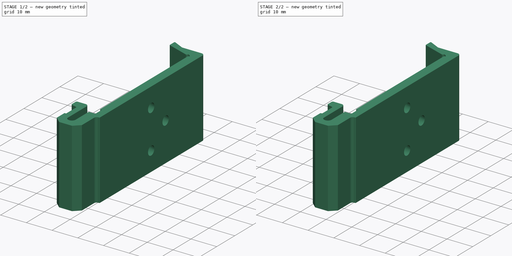
[diagram: build sequence overview — one tinted view per stage of 2, left to right]
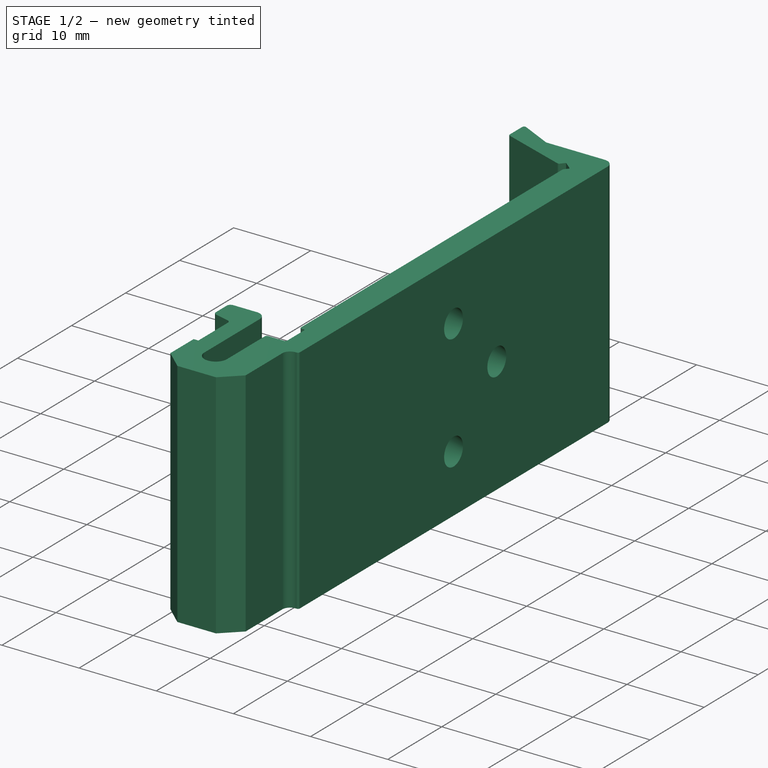
[diagram: stage 1 of 2 — iso view after this stage's code; geometry added in this stage tinted green]
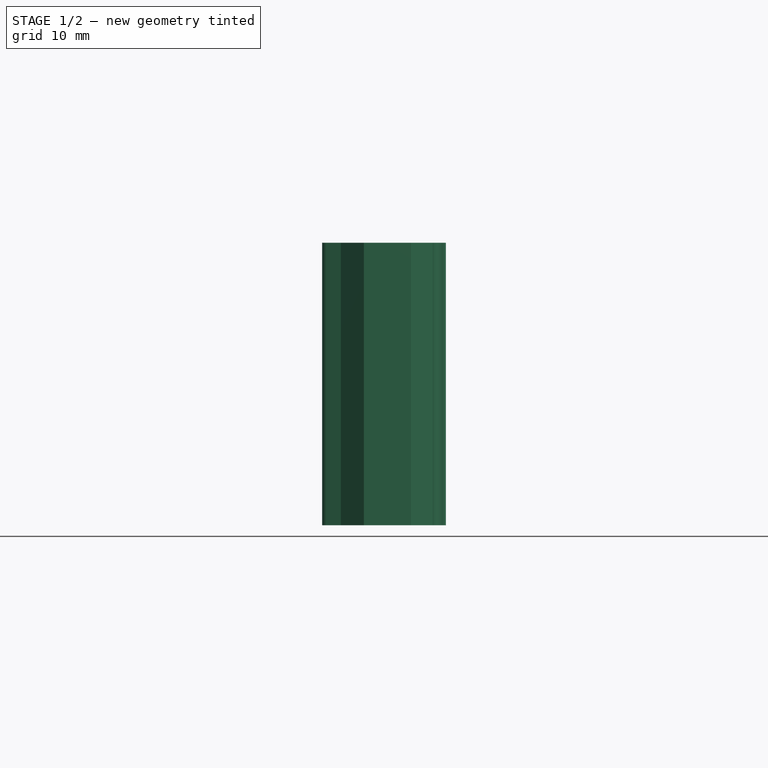
[diagram: stage 1 of 2 — front view after this stage's code; geometry added in this stage tinted green]
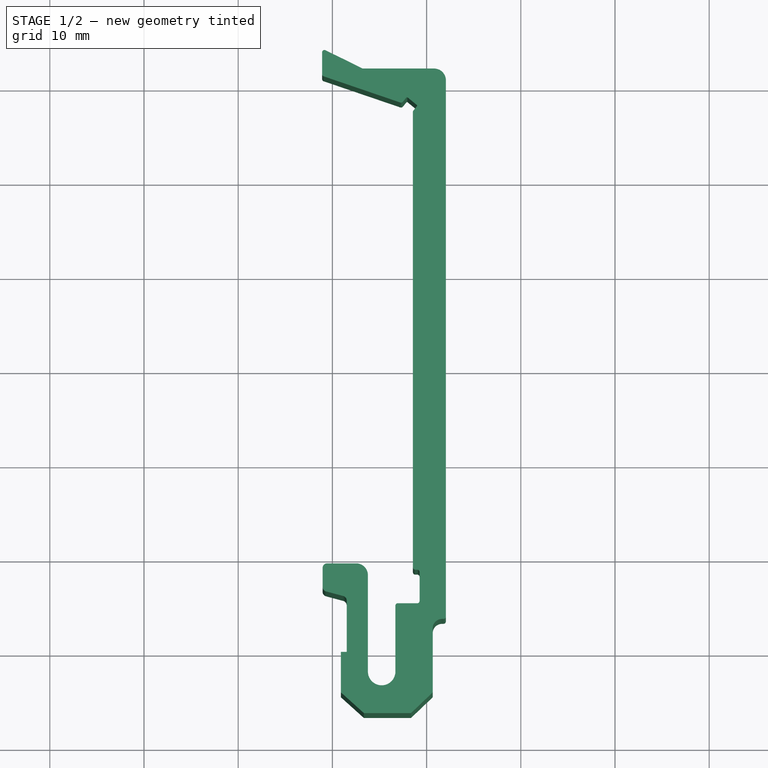
[diagram: stage 1 of 2 — top view after this stage's code; geometry added in this stage tinted green]
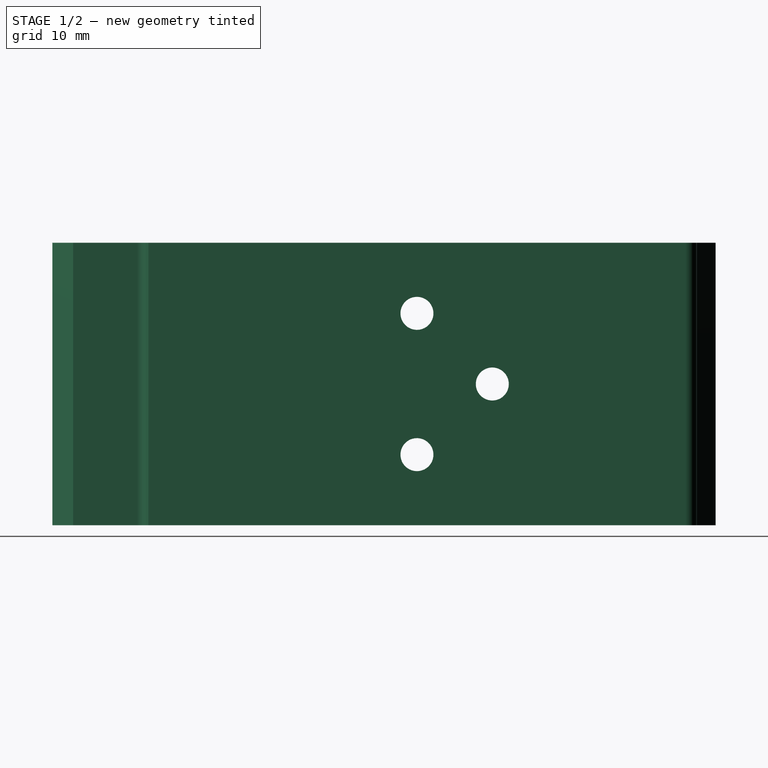
[diagram: stage 1 of 2 — right view after this stage's code; geometry added in this stage tinted green]
FCSTD DOCUMENT  (FreeCAD 1.0R39319 (Git))
Label: DIN35 Mounting
License: All rights reserved
LicenseURL: https://en.wikipedia.org/wiki/All_rights_reserved
objects: Sketcher::SketchObject×3, Image::ImagePlane×1, PartDesign::Pad×1, PartDesign::SubtractiveLoft×1, PartDesign::Fillet×1, PartDesign::Body×1
note: 16 computed .brp shape members not serialized (recipe doc carries the construction recipe); baked Part::Feature solids carry a one-line shape summary decoded from their .brp

FEATURE [Image::ImagePlane] DIN35_Mount
  XSize = 167.46
  YSize = 108.995
FEATURE [Sketcher::SketchObject] Sketch
  ArcFitTolerance = 1e-06
  AttachmentSupport = -> [XY_Plane]
  FullyConstrained = false
  MakeInternals = false
  MapMode = 5
  sketch-geometry (61):
    g0: LineSegment StartX=-60.7319 StartY=23.7923 StartZ=0 EndX=-56.7808 EndY=21.8492 EndZ=0
    g1: LineSegment StartX=-56.7808 StartY=21.8492 StartZ=0 EndX=-49.2013 EndY=21.8492 EndZ=0
    g2: LineSegment StartX=-47.9513 StartY=20.5992 StartZ=0 EndX=-47.9513 EndY=-36.337 EndZ=0
    g3: LineSegment StartX=-48.2013 StartY=-36.587 StartZ=0 EndX=-48.3485 EndY=-36.587 EndZ=0
    g4: LineSegment StartX=-49.3485 StartY=-37.587 StartZ=0 EndX=-49.3485 EndY=-44.387 EndZ=0
    g5: LineSegment StartX=-49.3485 StartY=-44.387 StartZ=0 EndX=-51.6552 EndY=-46.587 EndZ=0
    g6: LineSegment StartX=-51.6552 StartY=-46.587 StartZ=0 EndX=-56.6552 EndY=-46.587 EndZ=0
    g7: LineSegment StartX=-56.6552 StartY=-46.587 StartZ=0 EndX=-59.0985 EndY=-44.387 EndZ=0
    g8: LineSegment StartX=-59.0985 StartY=-44.387 StartZ=0 EndX=-59.0985 EndY=-40.087 EndZ=0
    g9: LineSegment StartX=-58.4811 StartY=-40.087 StartZ=0 EndX=-58.4811 EndY=-34.6402 EndZ=0
    g10: LineSegment StartX=-58.8517 StartY=-34.1572 StartZ=0 EndX=-60.6719 EndY=-33.6695 EndZ=0
    g11: LineSegment StartX=-61.0425 StartY=-33.1865 StartZ=0 EndX=-61.0425 EndY=-31.1865 EndZ=0
    g12: LineSegment StartX=-60.5425 StartY=-30.6865 StartZ=0 EndX=-57.4811 EndY=-30.6865 EndZ=0
    g13: LineSegment StartX=-56.2311 StartY=-31.9365 StartZ=0 EndX=-56.2311 EndY=-42.1793 EndZ=0
    g14: ArcOfCircle CenterX=-54.7711 CenterY=-42.1793 CenterZ=0 NormalX=0 NormalY=0 NormalZ=1 AngleXU=0 Radius=1.46 StartAngle=3.14159 EndAngle=6.28319
    g15: LineSegment StartX=-53.3111 StartY=-42.1793 StartZ=0 EndX=-53.3111 EndY=-35.1739 EndZ=0
    g16: LineSegment StartX=-53.0611 StartY=-34.9239 StartZ=0 EndX=-50.9949 EndY=-34.9239 EndZ=0
    g17: LineSegment StartX=-50.7449 StartY=-34.6739 StartZ=0 EndX=-50.7449 EndY=-31.6139 EndZ=0
    g18: LineSegment StartX=-50.9949 StartY=-31.3639 StartZ=0 EndX=-51.2013 EndY=-31.3639 EndZ=0
    g19: LineSegment StartX=-51.4513 StartY=-31.1139 StartZ=0 EndX=-51.4513 EndY=17.2408 EndZ=0
    g20: LineSegment StartX=-51.3946 StartY=17.3994 StartZ=0 EndX=-51.0289 EndY=17.8452 EndZ=0
    g21: LineSegment StartX=-51.0428 StartY=17.9859 StartZ=0 EndX=-52.0093 EndY=18.7787 EndZ=0
    g22: LineSegment StartX=-52.15 StartY=18.7648 StartZ=0 EndX=-52.5157 EndY=18.319 EndZ=0
    g23: LineSegment StartX=-52.7898 StartY=18.241 StartZ=0 EndX=-60.923 EndY=21.0188 EndZ=0
    g24: LineSegment StartX=-61.0922 StartY=21.2554 StartZ=0 EndX=-61.0922 EndY=23.5679 EndZ=0
    g25: GeomPoint [constr] X=-58.4811 Y=-40.1664 Z=0
    g26: LineSegment StartX=-59.0985 StartY=-40.087 StartZ=0 EndX=-58.4811 EndY=-40.087 EndZ=0
    g27: ArcOfCircle CenterX=-49.2013 CenterY=20.5992 CenterZ=0 NormalX=0 NormalY=0 NormalZ=1 AngleXU=0 Radius=1.25 StartAngle=0 EndAngle=1.5708
    g28: GeomPoint [constr] X=-47.9513 Y=21.8492 Z=0
    g29: ArcOfCircle CenterX=-60.8422 CenterY=23.5679 CenterZ=0 NormalX=0 NormalY=0 NormalZ=1 AngleXU=0 Radius=0.25 StartAngle=1.11376 EndAngle=3.14159
    g30: GeomPoint [constr] X=-61.0922 Y=23.9695 Z=0
    g31: ArcOfCircle CenterX=-60.8422 CenterY=21.2554 CenterZ=0 NormalX=0 NormalY=0 NormalZ=1 AngleXU=0 Radius=0.25 StartAngle=3.14159 EndAngle=4.38327
    g32: GeomPoint [constr] X=-61.0922 Y=21.0766 Z=0
    g33: ArcOfCircle CenterX=-52.0727 CenterY=18.7014 CenterZ=0 NormalX=0 NormalY=0 NormalZ=1 AngleXU=0 Radius=0.1 StartAngle=0.88379 EndAngle=2.45459
    g34: GeomPoint [constr] X=-52.0866 Y=18.8421 Z=0
    g35: ArcOfCircle CenterX=-51.1063 CenterY=17.9086 CenterZ=0 NormalX=0 NormalY=0 NormalZ=1 AngleXU=0 Radius=0.1 StartAngle=5.59618 EndAngle=7.16698
    g36: GeomPoint [constr] X=-50.9655 Y=17.9225 Z=0
    g37: ArcOfCircle CenterX=-51.2013 CenterY=-31.1139 CenterZ=0 NormalX=0 NormalY=0 NormalZ=1 AngleXU=0 Radius=0.25 StartAngle=3.14159 EndAngle=4.71239
    g38: GeomPoint [constr] X=-51.4513 Y=-31.3639 Z=0
    g39: ArcOfCircle CenterX=-50.9949 CenterY=-31.6139 CenterZ=0 NormalX=0 NormalY=0 NormalZ=1 AngleXU=0 Radius=0.25 StartAngle=-3.6e-15 EndAngle=1.5708
    g40: GeomPoint [constr] X=-50.7449 Y=-31.3639 Z=0
    g41: ArcOfCircle CenterX=-53.0611 CenterY=-35.1739 CenterZ=0 NormalX=0 NormalY=0 NormalZ=1 AngleXU=0 Radius=0.25 StartAngle=1.5708 EndAngle=3.14159
    g42: GeomPoint [constr] X=-53.3111 Y=-34.9239 Z=0
    g43: ArcOfCircle CenterX=-50.9949 CenterY=-34.6739 CenterZ=0 NormalX=0 NormalY=0 NormalZ=1 AngleXU=0 Radius=0.25 StartAngle=4.71239 EndAngle=6.28319
    g44: GeomPoint [constr] X=-50.7449 Y=-34.9239 Z=0
    g45: ArcOfCircle CenterX=-48.3485 CenterY=-37.587 CenterZ=0 NormalX=0 NormalY=0 NormalZ=1 AngleXU=0 Radius=1 StartAngle=1.5708 EndAngle=3.14159
    g46: GeomPoint [constr] X=-49.3485 Y=-36.587 Z=0
    g47: ArcOfCircle CenterX=-48.2013 CenterY=-36.337 CenterZ=0 NormalX=0 NormalY=0 NormalZ=1 AngleXU=0 Radius=0.25 StartAngle=4.71239 EndAngle=6.28319
    g48: GeomPoint [constr] X=-47.9513 Y=-36.587 Z=0
    g49: ArcOfCircle CenterX=-52.709 CenterY=18.4776 CenterZ=0 NormalX=0 NormalY=0 NormalZ=1 AngleXU=0 Radius=0.25 StartAngle=4.38327 EndAngle=5.59618
    g50: GeomPoint [constr] X=-52.6257 Y=18.1849 Z=0
    g51: ArcOfCircle CenterX=-51.2013 CenterY=17.2408 CenterZ=0 NormalX=0 NormalY=0 NormalZ=1 AngleXU=0 Radius=0.25 StartAngle=2.45459 EndAngle=3.14159
    g52: GeomPoint [constr] X=-51.4513 Y=17.3302 Z=0
    g53: ArcOfCircle CenterX=-57.4811 CenterY=-31.9365 CenterZ=0 NormalX=0 NormalY=0 NormalZ=1 AngleXU=0 Radius=1.25 StartAngle=0 EndAngle=1.5708
    g54: GeomPoint [constr] X=-56.2311 Y=-30.6865 Z=0
    g55: ArcOfCircle CenterX=-60.5425 CenterY=-31.1865 CenterZ=0 NormalX=0 NormalY=0 NormalZ=1 AngleXU=0 Radius=0.5 StartAngle=1.5708 EndAngle=3.14159
    g56: GeomPoint [constr] X=-61.0425 Y=-30.6865 Z=0
    g57: ArcOfCircle CenterX=-60.5425 CenterY=-33.1865 CenterZ=0 NormalX=0 NormalY=0 NormalZ=1 AngleXU=0 Radius=0.5 StartAngle=3.14159 EndAngle=4.45059
    g58: GeomPoint [constr] X=-61.0425 Y=-33.5702 Z=0
    g59: ArcOfCircle CenterX=-58.9811 CenterY=-34.6402 CenterZ=0 NormalX=0 NormalY=0 NormalZ=1 AngleXU=0 Radius=0.5 StartAngle=5.9e-15 EndAngle=1.309
    g60: GeomPoint [constr] X=-58.4811 Y=-34.2565 Z=0
  constraints (131):
    c: Coincident(g0,g1)
    c: Horizontal(g1)
    c: Vertical(g2)
    c: Vertical(g4)
    c: Coincident(g4,g5)
    c: Coincident(g5,g6)
    c: Horizontal(g6)
    c: Coincident(g6,g7)
    c: Coincident(g7,g8)
    c: Vertical(g9)
    c: Vertical(g11)
    c: Horizontal(g12)
    c: Vertical(g13)
    c: Tangent(g13,g14) = -1.5708
    c: Coincident(g14,g15)
    c: Vertical(g15)
    c: Horizontal(g16)
    c: Vertical(g19)
    c: Vertical(g24)
    c: Vertical(g8)
    c: PointOnObject(g25,g9)
    c: Coincident(g8,g26)
    c: Horizontal(g26)
    c: Coincident(g26,g9)
    c: Horizontal(g3)
    c: Horizontal(g18)
    c: Vertical(g17)
    c: Parallel(g20,g22)
    c: Perpendicular(g21,g20)
    c: PointOnObject(g28,g2)
    c: PointOnObject(g28,g1)
    c: Tangent(g2,g27) = 1.5708
    c: Tangent(g1,g27) = 1.5708
    c: PointOnObject(g30,g0)
    c: PointOnObject(g30,g24)
    c: Tangent(g0,g29) = 1.5708
    c: Tangent(g24,g29) = 1.5708
    c: PointOnObject(g32,g24)
    c: PointOnObject(g32,g23)
    c: Tangent(g24,g31) = 1.5708
    c: Tangent(g23,g31) = 1.5708
    c: Equal(g29,g31)
    c: PointOnObject(g34,g21)
    c: PointOnObject(g34,g22)
    c: Tangent(g21,g33) = -1.5708
    c: Tangent(g22,g33) = -1.5708
    c: PointOnObject(g36,g21)
    c: PointOnObject(g36,g20)
    c: Tangent(g21,g35) = -1.5708
    c: Tangent(g20,g35) = -1.5708
    c: Equal(g33,g35)
    c: Radius(g33) = 0.1
    c: Radius(g29) = 0.25
    c: Radius(g27) = 1.25
    c: PointOnObject(g38,g18)
    c: PointOnObject(g38,g19)
    c: Tangent(g18,g37) = 1.5708
    c: Tangent(g19,g37) = 1.5708
    c: PointOnObject(g40,g17)
    c: PointOnObject(g40,g18)
    c: Tangent(g17,g39) = -1.5708
    c: Tangent(g18,g39) = -1.5708
    c: PointOnObject(g42,g16)
    c: PointOnObject(g42,g15)
    c: Tangent(g16,g41) = 1.5708
    c: Tangent(g15,g41) = 1.5708
    c: PointOnObject(g44,g17)
    c: PointOnObject(g44,g16)
    c: Tangent(g17,g43) = -1.5708
    c: Tangent(g16,g43) = -1.5708
    c: Equal(g37,g39)
    c: Equal(g43,g41)
    c: Equal(g43,g39)
    c: Radius(g37) = 0.25
    c: PointOnObject(g46,g3)
    c: PointOnObject(g46,g4)
    c: Tangent(g3,g45) = -1.5708
    c: Tangent(g4,g45) = -1.5708
    c: Radius(g45) = 1
    c: PointOnObject(g48,g3)
    c: PointOnObject(g48,g2)
    c: Tangent(g3,g47) = 1.5708
    c: Tangent(g2,g47) = 1.5708
    c: Radius(g47) = 0.25
    c: Distance(g2,g19) = 3.5
    c: Distance(g22,g50) = 0.75
    c: PointOnObject(g50,g22)
    c: PointOnObject(g50,g23)
    c: Tangent(g22,g49) = 1.5708
    c: Tangent(g23,g49) = 1.5708
    c: PointOnObject(g52,g20)
    c: PointOnObject(g52,g19)
    c: Tangent(g20,g51) = 1.5708
    c: Tangent(g19,g51) = 1.5708
    c: Equal(g51,g49)
    c: Radius(g49) = 0.25
    c: Distance(g21,g21) = 1.25
    c: Equal(g22,g20)
    c: PointOnObject(g54,g13)
    c: PointOnObject(g54,g12)
    c: Tangent(g13,g53) = 1.5708
    c: Tangent(g12,g53) = 1.5708
    c: Radius(g53) = 1.25
    c: PointOnObject(g56,g12)
    c: PointOnObject(g56,g11)
    c: Tangent(g12,g55) = 1.5708
    c: Tangent(g11,g55) = 1.5708
    c: Radius(g55) = 0.5
    c: PointOnObject(g58,g10)
    c: PointOnObject(g58,g11)
    c: Tangent(g10,g57) = 1.5708
    c: Tangent(g11,g57) = 1.5708
    c: Angle(g10,g11) = 1.8326
    c: Radius(g57) = 0.5
    c: PointOnObject(g60,g10)
    c: PointOnObject(g60,g9)
    c: Tangent(g10,g59) = -1.5708
    c: Tangent(g9,g59) = -1.5708
    c: Radius(g59) = 0.5
    c: Distance(g13,g9) = 2.25
    c: Radius(g14) = 1.46
    c: DistanceY(g7,g7) = 2.2
    c: Distance(g4,g8) = 9.75
    c: Distance(g60,g12) = 3.57
    c: DistanceY(g11,g11) = 2
    c: Angle(g6,g7) = 2.40855
    c: Horizontal(g7,g4)
    c: Distance(g15,g13) = 2.92
    c: DistanceX(g6,g6) = 5
    c: Distance(g46,g6) = 10
    c: Distance(g6,g26) = 6.5
FEATURE [PartDesign::Pad] Pad
  Direction = (0,0,1)
  Length = 30
  Length2 = 10
  Profile = -> Sketch
  ReferenceAxis = -> Sketch [N_Axis]
  Refine = true
  Suppressed = false
  Type = 0
FEATURE [Sketcher::SketchObject] Sketch001
  ArcFitTolerance = 1e-06
  AttachmentSupport = -> [Pad]
  ExternalGeometry = -> [Pad]
  FullyConstrained = true
  MakeInternals = false
  MapMode = 5
  Placement = pos=(-51.4513,0,0) rot=(0.57735,-0.57735,-0.57735;2.0944rad)
  sketch-geometry (3):
    g0: Circle CenterX=8.11392 CenterY=7.5 CenterZ=0 NormalX=0 NormalY=0 NormalZ=1 AngleXU=0 Radius=3
    g1: Circle CenterX=8.11392 CenterY=22.5 CenterZ=0 NormalX=0 NormalY=0 NormalZ=1 AngleXU=0 Radius=3
    g2: Circle CenterX=0.113916 CenterY=15 CenterZ=0 NormalX=0 NormalY=0 NormalZ=1 AngleXU=0 Radius=3
  constraints (9):
    c: Diameter(g0) = 6
    c: Equal(g0,g1)
    c: Vertical(g0,g1)
    c: Distance(g0,g1) = 15
    c: Distance(g0,g-1) = 7.5
    c: Equal(g1,g2)
    c: DistanceX(g2,g1) = 8
    c: DistanceY(g-1,g2) = 15
    c: Distance(g0,g-4) = 23
FEATURE [Sketcher::SketchObject] Sketch002
  ArcFitTolerance = 1e-06
  AttachmentSupport = -> [Pad]
  ExternalGeometry = -> [Pad]
  FullyConstrained = true
  MakeInternals = false
  MapMode = 5
  Placement = pos=(-47.9513,0,0) rot=(0.57735,0.57735,0.57735;2.0944rad)
  sketch-geometry (3):
    g0: Circle CenterX=-7.88702 CenterY=7.5 CenterZ=0 NormalX=0 NormalY=0 NormalZ=1 AngleXU=0 Radius=1.75
    g1: Circle CenterX=-7.88702 CenterY=22.5 CenterZ=0 NormalX=0 NormalY=0 NormalZ=1 AngleXU=0 Radius=1.75
    g2: Circle CenterX=0.112975 CenterY=15 CenterZ=0 NormalX=0 NormalY=0 NormalZ=1 AngleXU=0 Radius=1.75
  constraints (9):
    c: Distance(g0,g-1) = 7.5
    c: Diameter(g0) = 3.5
    c: Equal(g0,g1)
    c: DistanceY(g0,g1) = 15
    c: Vertical(g0,g1)
    c: Equal(g0,g2)
    c: Distance(g2,g-1) = 15
    c: DistanceX(g0,g2) = 8
    c: Distance(g0,g-3) = 38.7
FEATURE [PartDesign::SubtractiveLoft] SubtractiveLoft
  BaseFeature = -> Pad
  Closed = false
  Profile = -> Sketch001
  Refine = true
  Ruled = false
  Sections = -> [Sketch002]
  Suppressed = false
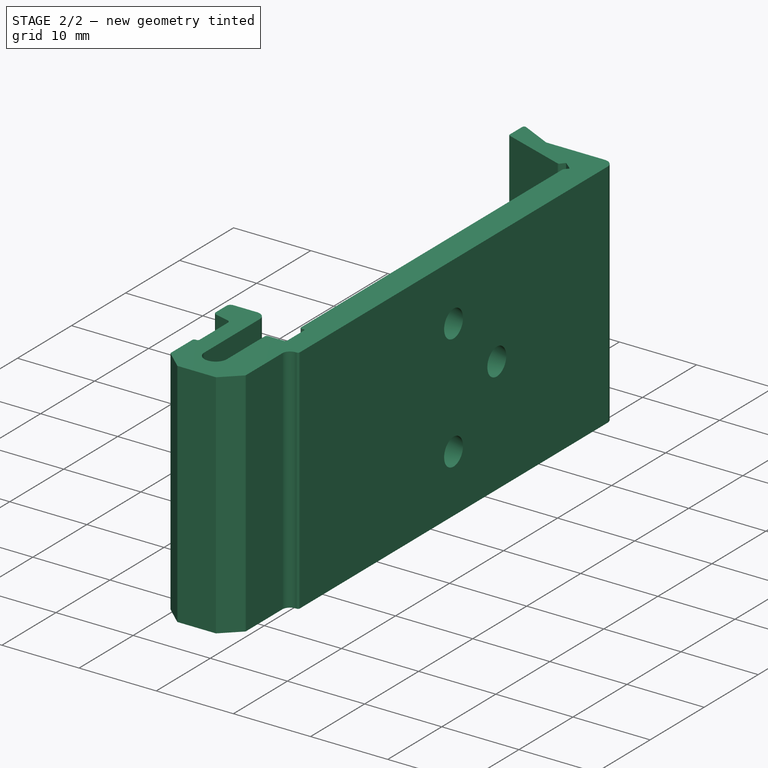
[diagram: stage 2 of 2 — iso view after this stage's code; geometry added in this stage tinted green]
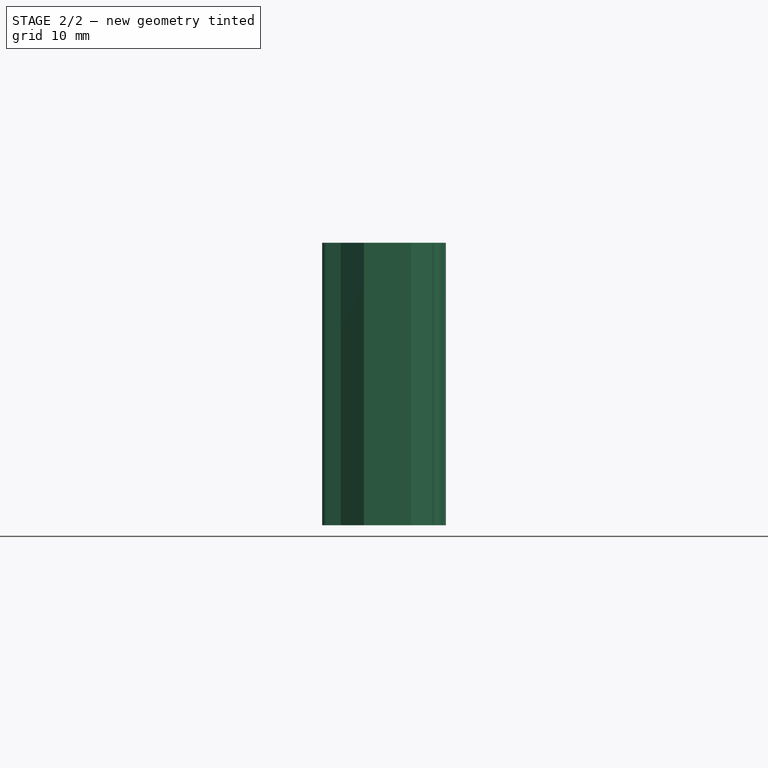
[diagram: stage 2 of 2 — front view after this stage's code; geometry added in this stage tinted green]
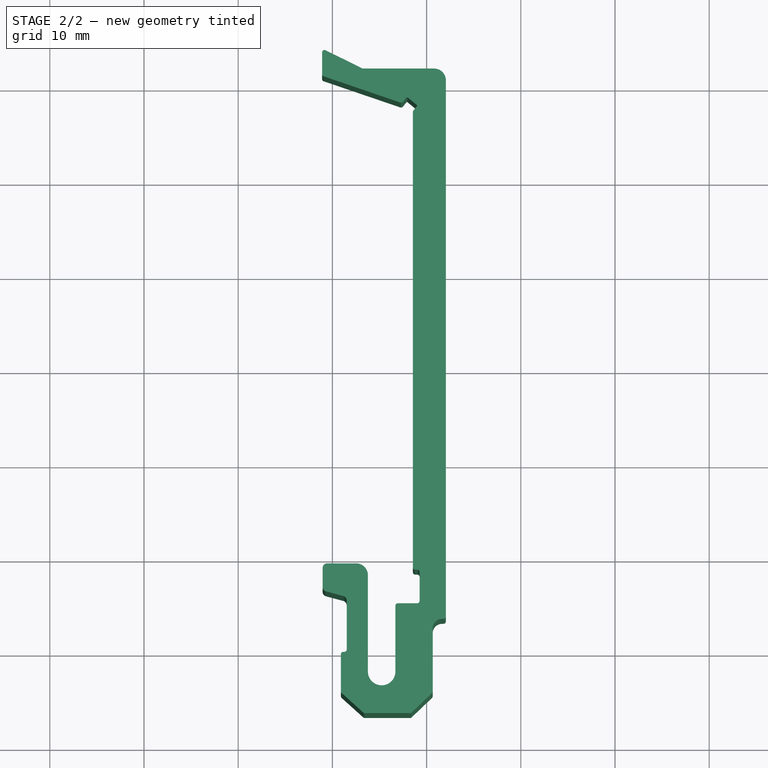
[diagram: stage 2 of 2 — top view after this stage's code; geometry added in this stage tinted green]
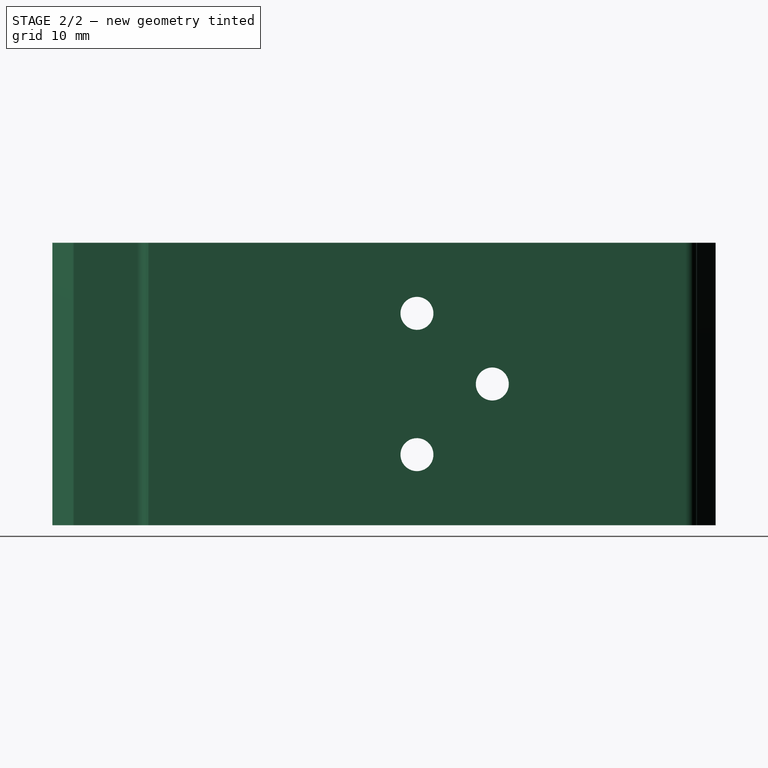
[diagram: stage 2 of 2 — right view after this stage's code; geometry added in this stage tinted green]
FEATURE [PartDesign::Fillet] Fillet
  Base = -> SubtractiveLoft [Edge107,Edge108,Edge106,Edge103]
  BaseFeature = -> SubtractiveLoft
  Radius = 0.25
  Refine = true
  SupportTransform = false
  Suppressed = false
  UseAllEdges = false
FEATURE [PartDesign::Body] Body
  AllowCompound = false
  Group = -> [Sketch,Pad,Sketch001,Sketch002,SubtractiveLoft,Fillet]
  Origin = -> Origin
  Tip = -> Fillet
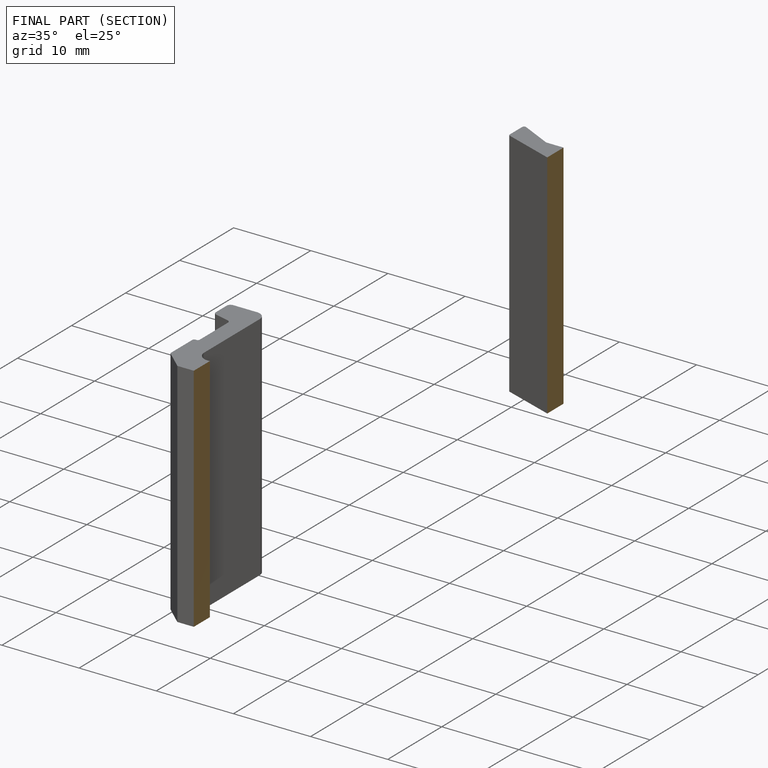
[diagram: finished part — half-section view (interior)]
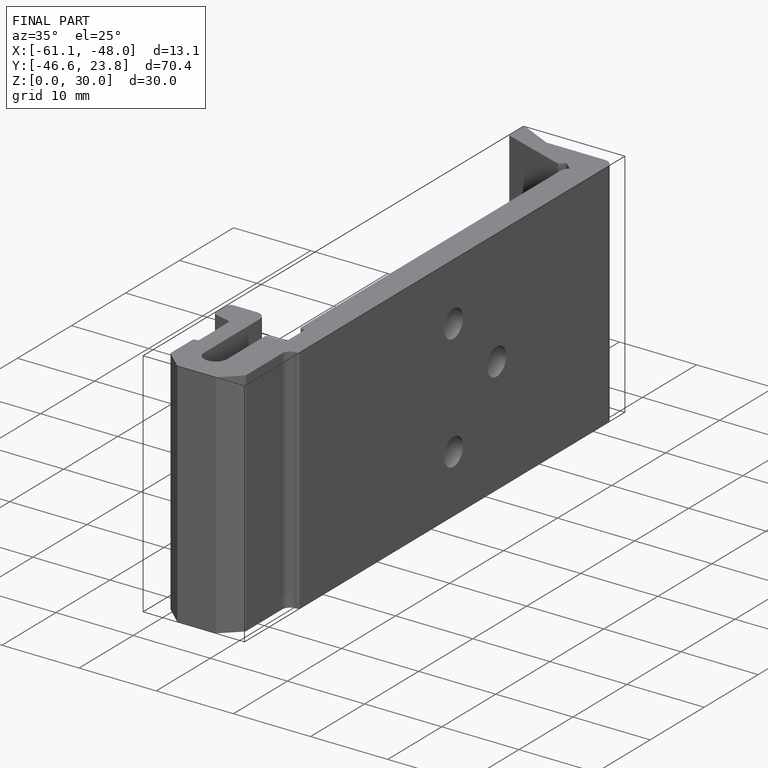
[diagram: finished part — iso view with bounding-box wireframe]
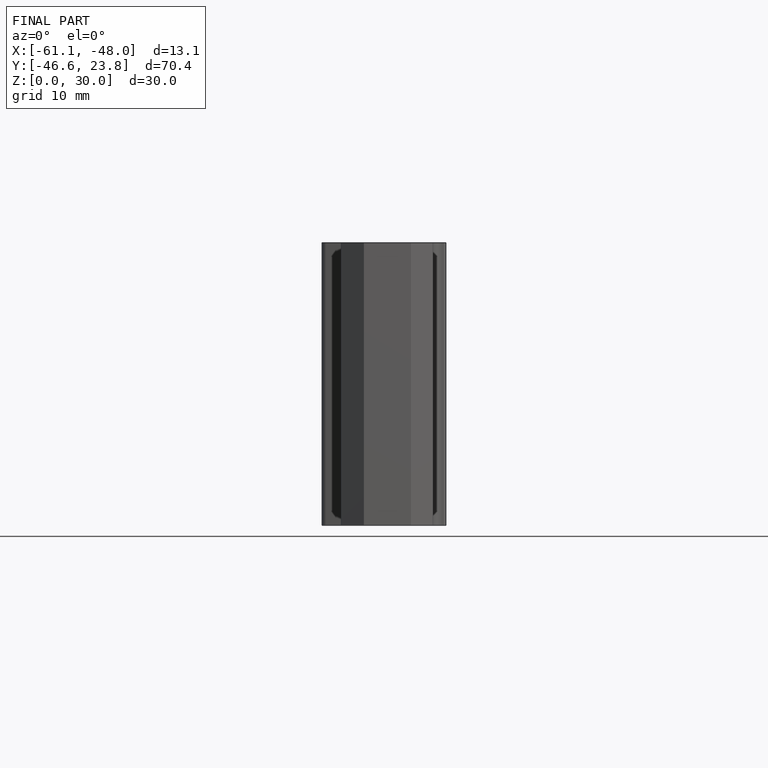
[diagram: finished part — front view with bounding-box wireframe]
